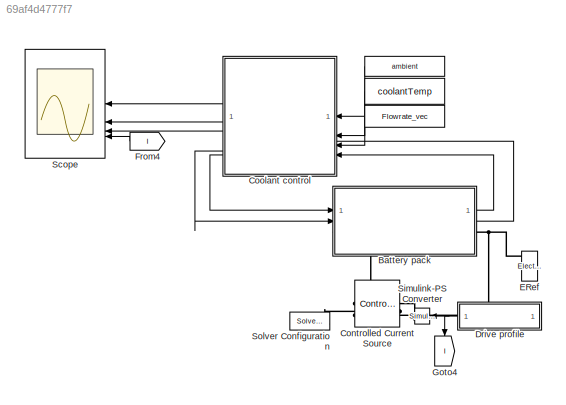
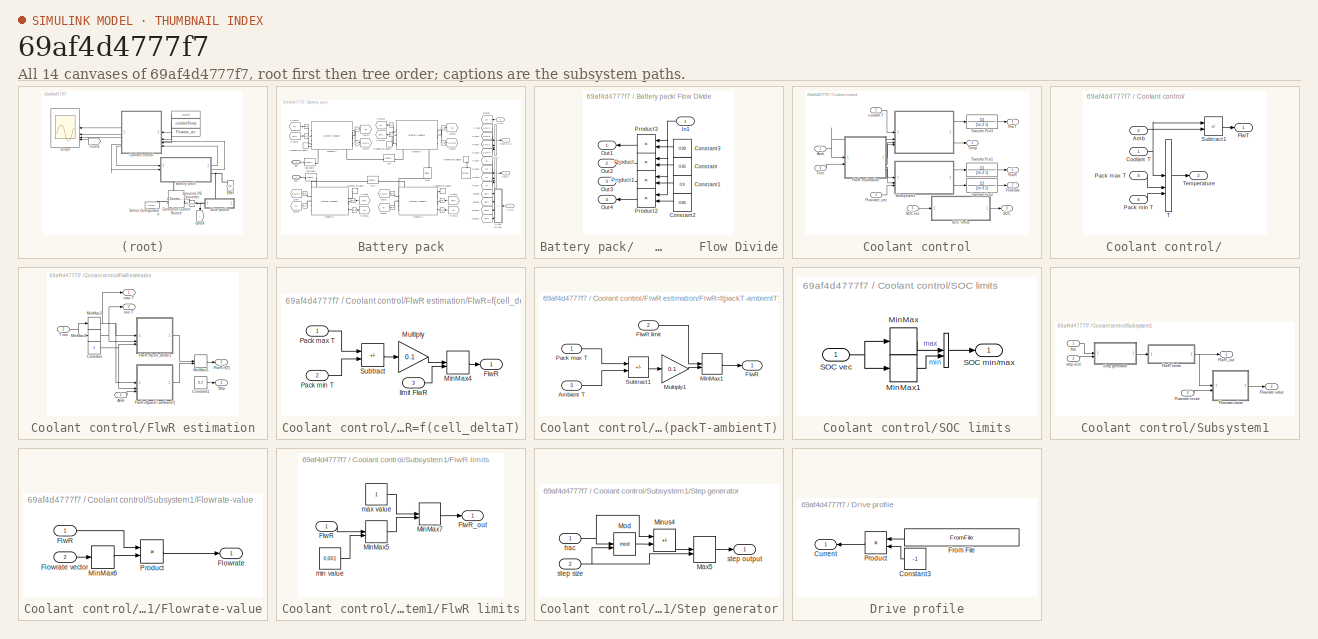
[diagram: thumbnail index - all 14 canvases of the model, root first then tree order]
MODEL slx_69af4d4777f7
KIND model
CONFIG AbsTol = 1e-3
CONFIG EnableMultiTasking = off
CONFIG FixedStep = auto
CONFIG MaxStep = 5e-2
CONFIG MinStep = auto
CONFIG PreLoadFcn = ee_lithium_pack_cooling_ini
CONFIG RelTol = 1e-3
CONFIG SampleTimeConstraint = Unconstrained
CONFIG SolverName = ode23t
CONFIG StartTime = 0.0
CONFIG StopTime = 400
BLOCK [Constant]  
  Value = coolantTemp
BLOCK [Constant]     
  Value = Flowrate_vec
BLOCK [Constant]        
  Value = ambient
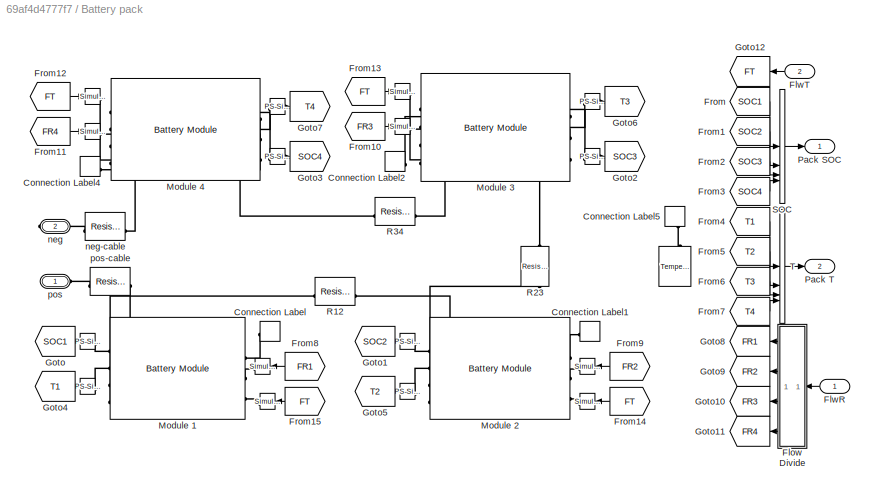
BLOCK [SubSystem] Battery pack
BLOCK [Reference] Battery pack/   REF=nesl_utility/PS-Simulink
Converter
  SourceBlock = nesl_utility/PS-Simulink\nConverter
  SourceType = PS-Simulink\nConverter
BLOCK [Reference] Battery pack/    REF=nesl_utility/PS-Simulink
Converter
  SourceBlock = nesl_utility/PS-Simulink\nConverter
  SourceType = PS-Simulink\nConverter
BLOCK [Reference] Battery pack/     REF=nesl_utility/PS-Simulink
Converter
  SourceBlock = nesl_utility/PS-Simulink\nConverter
  SourceType = PS-Simulink\nConverter
BLOCK [Reference] Battery pack/      REF=nesl_utility/Simulink-PS
Converter
  SourceBlock = nesl_utility/Simulink-PS\nConverter
  SourceType = Simulink-PS\nConverter
BLOCK [Reference] Battery pack/       REF=fl_lib/Thermal/Thermal Sources/Temperature Source
  NameLocation = left
  SourceBlock = fl_lib/Thermal/Thermal Sources/Temperature Source
  SourceType = Temperature Source
BLOCK [Reference] Battery pack/        REF=nesl_utility/PS-Simulink
Converter
  SourceBlock = nesl_utility/PS-Simulink\nConverter
  SourceType = PS-Simulink\nConverter
BLOCK [Reference] Battery pack/         REF=nesl_utility/Simulink-PS
Converter
  SourceBlock = nesl_utility/Simulink-PS\nConverter
  SourceType = Simulink-PS\nConverter
BLOCK [Reference] Battery pack/           REF=nesl_utility/PS-Simulink
Converter
  NameLocation = top
  SourceBlock = nesl_utility/PS-Simulink\nConverter
  SourceType = PS-Simulink\nConverter
BLOCK [Reference] Battery pack/            REF=nesl_utility/PS-Simulink
Converter
  NameLocation = top
  SourceBlock = nesl_utility/PS-Simulink\nConverter
  SourceType = PS-Simulink\nConverter
BLOCK [Reference] Battery pack/             REF=nesl_utility/Simulink-PS
Converter
  NameLocation = top
  SourceBlock = nesl_utility/Simulink-PS\nConverter
  SourceType = Simulink-PS\nConverter
BLOCK [Reference] Battery pack/              REF=nesl_utility/PS-Simulink
Converter
  NameLocation = top
  SourceBlock = nesl_utility/PS-Simulink\nConverter
  SourceType = PS-Simulink\nConverter
BLOCK [Reference] Battery pack/                REF=nesl_utility/Simulink-PS
Converter
  NameLocation = top
  SourceBlock = nesl_utility/Simulink-PS\nConverter
  SourceType = Simulink-PS\nConverter
BLOCK [Reference] Battery pack/                 REF=nesl_utility/Simulink-PS
Converter
  NameLocation = top
  SourceBlock = nesl_utility/Simulink-PS\nConverter
  SourceType = Simulink-PS\nConverter
BLOCK [Reference] Battery pack/                        REF=nesl_utility/Simulink-PS
Converter
  NameLocation = top
  SourceBlock = nesl_utility/Simulink-PS\nConverter
  SourceType = Simulink-PS\nConverter
BLOCK [Reference] Battery pack/                                        REF=nesl_utility/PS-Simulink
Converter
  NameLocation = top
  SourceBlock = nesl_utility/PS-Simulink\nConverter
  SourceType = PS-Simulink\nConverter
BLOCK [Reference] Battery pack/                                             REF=nesl_utility/Simulink-PS
Converter
  SourceBlock = nesl_utility/Simulink-PS\nConverter
  SourceType = Simulink-PS\nConverter
BLOCK [Reference] Battery pack/                                                    REF=nesl_utility/Simulink-PS
Converter
  NameLocation = right
  SourceBlock = nesl_utility/Simulink-PS\nConverter
  SourceType = Simulink-PS\nConverter
BLOCK [SubSystem] Battery pack/                        Flow Divide
  NameLocation = top
BLOCK [Constant] Battery pack/                        Flow Divide/Constant
  Value = 0.95
BLOCK [Constant] Battery pack/                        Flow Divide/Constant1
  Value = 0.9
BLOCK [Constant] Battery pack/                        Flow Divide/Constant2
  Value = 0.85
BLOCK [Constant] Battery pack/                        Flow Divide/Constant3
  Value = 0.99
BLOCK [Inport] Battery pack/                        Flow Divide/In1
BLOCK [Outport] Battery pack/                        Flow Divide/Out1
BLOCK [Outport] Battery pack/                        Flow Divide/Out2
  Port = 2
BLOCK [Outport] Battery pack/                        Flow Divide/Out3
  Port = 3
BLOCK [Outport] Battery pack/                        Flow Divide/Out4
  Port = 4
BLOCK [Product] Battery pack/                        Flow Divide/Product
BLOCK [Product] Battery pack/                        Flow Divide/Product1
BLOCK [Product] Battery pack/                        Flow Divide/Product2
BLOCK [Product] Battery pack/                        Flow Divide/Product3
BLOCK [ConnectionLabel] Battery pack/Connection Label
  Label = Amb
BLOCK [ConnectionLabel] Battery pack/Connection Label1
  Label = Amb
BLOCK [ConnectionLabel] Battery pack/Connection Label2
  Label = Amb
  NameLocation = top
BLOCK [ConnectionLabel] Battery pack/Connection Label4
  Label = Amb
  NameLocation = top
BLOCK [ConnectionLabel] Battery pack/Connection Label5
  Label = Amb
  NameLocation = left
BLOCK [Inport] Battery pack/FlwR
BLOCK [Inport] Battery pack/FlwT
  Port = 2
BLOCK [From] Battery pack/From
  GotoTag = SOC1
BLOCK [From] Battery pack/From1
  GotoTag = SOC2
BLOCK [From] Battery pack/From10
  GotoTag = FR3
  NameLocation = top
BLOCK [From] Battery pack/From11
  GotoTag = FR4
  NameLocation = top
BLOCK [From] Battery pack/From12
  GotoTag = FT
  NameLocation = top
BLOCK [From] Battery pack/From13
  GotoTag = FT
  NameLocation = top
BLOCK [From] Battery pack/From14
  GotoTag = FT
BLOCK [From] Battery pack/From15
  GotoTag = FT
BLOCK [From] Battery pack/From2
  GotoTag = SOC3
BLOCK [From] Battery pack/From3
  GotoTag = SOC4
BLOCK [From] Battery pack/From4
  GotoTag = T1
BLOCK [From] Battery pack/From5
  GotoTag = T2
BLOCK [From] Battery pack/From6
  GotoTag = T3
BLOCK [From] Battery pack/From7
  GotoTag = T4
BLOCK [From] Battery pack/From8
  GotoTag = FR1
BLOCK [From] Battery pack/From9
  GotoTag = FR2
BLOCK [Goto] Battery pack/Goto
  GotoTag = SOC1
BLOCK [Goto] Battery pack/Goto1
  GotoTag = SOC2
BLOCK [Goto] Battery pack/Goto10
  GotoTag = FR3
BLOCK [Goto] Battery pack/Goto11
  GotoTag = FR4
BLOCK [Goto] Battery pack/Goto12
  GotoTag = FT
BLOCK [Goto] Battery pack/Goto2
  GotoTag = SOC3
  NameLocation = top
BLOCK [Goto] Battery pack/Goto3
  GotoTag = SOC4
  NameLocation = top
BLOCK [Goto] Battery pack/Goto4
  GotoTag = T1
BLOCK [Goto] Battery pack/Goto5
  GotoTag = T2
BLOCK [Goto] Battery pack/Goto6
  GotoTag = T3
  NameLocation = top
BLOCK [Goto] Battery pack/Goto7
  GotoTag = T4
  NameLocation = top
BLOCK [Goto] Battery pack/Goto8
  GotoTag = FR1
BLOCK [Goto] Battery pack/Goto9
  GotoTag = FR2
BLOCK [Reference] Battery pack/Module 1  REF=ee_battery_module_lib/Battery Module
  SourceBlock = ee_battery_module_lib/Battery Module
  SourceType = Battery Module
BLOCK [Reference] Battery pack/Module 2  REF=ee_battery_module_lib/Battery Module
  SourceBlock = ee_battery_module_lib/Battery Module
  SourceType = Battery Module
BLOCK [Reference] Battery pack/Module 3  REF=ee_battery_module_lib/Battery Module
  NameLocation = top
  SourceBlock = ee_battery_module_lib/Battery Module
  SourceType = Battery Module
BLOCK [Reference] Battery pack/Module 4  REF=ee_battery_module_lib/Battery Module
  NameLocation = top
  SourceBlock = ee_battery_module_lib/Battery Module
  SourceType = Battery Module
BLOCK [Outport] Battery pack/Pack SOC
BLOCK [Outport] Battery pack/Pack T
  Port = 2
BLOCK [Reference] Battery pack/R12  REF=fl_lib/Electrical/Electrical Elements/Resistor
  NameLocation = top
  SourceBlock = fl_lib/Electrical/Electrical Elements/Resistor
  SourceType = Resistor
BLOCK [Reference] Battery pack/R23  REF=fl_lib/Electrical/Electrical Elements/Resistor
  NameLocation = left
  SourceBlock = fl_lib/Electrical/Electrical Elements/Resistor
  SourceType = Resistor
BLOCK [Reference] Battery pack/R34  REF=fl_lib/Electrical/Electrical Elements/Resistor
  SourceBlock = fl_lib/Electrical/Electrical Elements/Resistor
  SourceType = Resistor
BLOCK [Concatenate] Battery pack/SOC
  NumInputs = 4
BLOCK [Concatenate] Battery pack/T
  NumInputs = 4
BLOCK [PMIOPort] Battery pack/neg
  Port = 2
  Side = Right
BLOCK [Reference] Battery pack/neg-cable  REF=fl_lib/Electrical/Electrical Elements/Resistor
  NameLocation = top
  SourceBlock = fl_lib/Electrical/Electrical Elements/Resistor
  SourceType = Resistor
BLOCK [PMIOPort] Battery pack/pos
  NameLocation = top
  Side = Left
BLOCK [Reference] Battery pack/pos-cable  REF=fl_lib/Electrical/Electrical Elements/Resistor
  SourceBlock = fl_lib/Electrical/Electrical Elements/Resistor
  SourceType = Resistor
BLOCK [Reference] Controlled Current Source  REF=fl_lib/Electrical/Electrical Sources/Controlled Current
Source
  NameLocation = top
  SourceBlock = fl_lib/Electrical/Electrical Sources/Controlled Current\nSource
  SourceType = Controlled Current\nSource
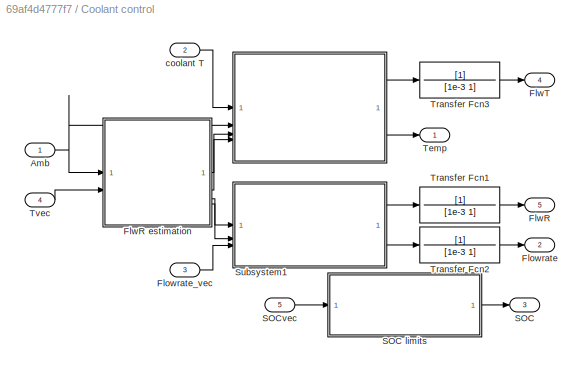
BLOCK [SubSystem] Coolant control
BLOCK [SubSystem] Coolant control/   
  NameLocation = top
BLOCK [Inport] Coolant control/   /Amb
  Port = 2
BLOCK [Inport] Coolant control/   /Coolant T
BLOCK [Outport] Coolant control/   /FlwT
BLOCK [Inport] Coolant control/   /Pack max T
  Port = 3
BLOCK [Inport] Coolant control/   /Pack min T
  Port = 4
BLOCK [Sum] Coolant control/   /Subtract1
  IconShape = rectangular
  Inputs = +-
BLOCK [Concatenate] Coolant control/   /T
  NumInputs = 3
BLOCK [Outport] Coolant control/   /Temperature
  Port = 2
BLOCK [Inport] Coolant control/Amb
BLOCK [Outport] Coolant control/Flowrate
  Port = 2
BLOCK [Inport] Coolant control/Flowrate_vec
  Port = 3
BLOCK [Outport] Coolant control/FlwR
  Port = 5
BLOCK [SubSystem] Coolant control/FlwR estimation
BLOCK [Inport] Coolant control/FlwR estimation/Amb
BLOCK [Constant] Coolant control/FlwR estimation/Constant
BLOCK [Constant] Coolant control/FlwR estimation/Constant1
  Value = 0.2
BLOCK [Outport] Coolant control/FlwR estimation/FlwR=f(T)
  Port = 3
BLOCK [SubSystem] Coolant control/FlwR estimation/FlwR=f(cell_deltaT)
BLOCK [Outport] Coolant control/FlwR estimation/FlwR=f(cell_deltaT)/FlwR
BLOCK [MinMax] Coolant control/FlwR estimation/FlwR=f(cell_deltaT)/MinMax4
  Inputs = 2
  ZeroCross = off
BLOCK [Gain] Coolant control/FlwR estimation/FlwR=f(cell_deltaT)/Multiply
  Gain = 0.1
BLOCK [Inport] Coolant control/FlwR estimation/FlwR=f(cell_deltaT)/Pack max T
BLOCK [Inport] Coolant control/FlwR estimation/FlwR=f(cell_deltaT)/Pack min T
  Port = 2
BLOCK [Sum] Coolant control/FlwR estimation/FlwR=f(cell_deltaT)/Subtract
  IconShape = rectangular
  Inputs = +-
BLOCK [Inport] Coolant control/FlwR estimation/FlwR=f(cell_deltaT)/limit FlwR
  Port = 3
BLOCK [SubSystem] Coolant control/FlwR estimation/FlwR=f(packT-ambientT)
BLOCK [Inport] Coolant control/FlwR estimation/FlwR=f(packT-ambientT)/Ambient T
  Port = 3
BLOCK [Outport] Coolant control/FlwR estimation/FlwR=f(packT-ambientT)/FlwR
BLOCK [Inport] Coolant control/FlwR estimation/FlwR=f(packT-ambientT)/FlwR limit
  Port = 2
BLOCK [MinMax] Coolant control/FlwR estimation/FlwR=f(packT-ambientT)/MinMax1
  Inputs = 2
  ZeroCross = off
BLOCK [Gain] Coolant control/FlwR estimation/FlwR=f(packT-ambientT)/Multiply1
  Gain = 0.1
BLOCK [Inport] Coolant control/FlwR estimation/FlwR=f(packT-ambientT)/Pack max T
BLOCK [Sum] Coolant control/FlwR estimation/FlwR=f(packT-ambientT)/Subtract1
  IconShape = rectangular
  Inputs = +-
BLOCK [MinMax] Coolant control/FlwR estimation/MinMax2
  Function = max
  ZeroCross = off
BLOCK [MinMax] Coolant control/FlwR estimation/MinMax3
  ZeroCross = off
BLOCK [MinMax] Coolant control/FlwR estimation/MinMax5
  Function = max
  Inputs = 2
  ZeroCross = off
BLOCK [Outport] Coolant control/FlwR estimation/Step
  Port = 4
BLOCK [Inport] Coolant control/FlwR estimation/T vec
  Port = 2
BLOCK [Outport] Coolant control/FlwR estimation/max T
BLOCK [Outport] Coolant control/FlwR estimation/min T
  Port = 2
BLOCK [Outport] Coolant control/FlwT
  Port = 4
BLOCK [Outport] Coolant control/SOC
  Port = 3
BLOCK [SubSystem] Coolant control/SOC limits
BLOCK [Concatenate] Coolant control/SOC limits/ 
BLOCK [MinMax] Coolant control/SOC limits/MinMax
  Function = max
  ZeroCross = off
BLOCK [MinMax] Coolant control/SOC limits/MinMax1
  ZeroCross = off
BLOCK [Outport] Coolant control/SOC limits/SOC min//max
BLOCK [Inport] Coolant control/SOC limits/SOC vec
BLOCK [Inport] Coolant control/SOCvec
  Port = 5
BLOCK [SubSystem] Coolant control/Subsystem1
BLOCK [Outport] Coolant control/Subsystem1/Flowrate value
  Port = 2
BLOCK [Inport] Coolant control/Subsystem1/Flowrate vector
  Port = 3
BLOCK [SubSystem] Coolant control/Subsystem1/Flowrate-value
BLOCK [Outport] Coolant control/Subsystem1/Flowrate-value/Flowrate
BLOCK [Inport] Coolant control/Subsystem1/Flowrate-value/Flowrate vector
  Port = 2
BLOCK [Inport] Coolant control/Subsystem1/Flowrate-value/FlwR
BLOCK [MinMax] Coolant control/Subsystem1/Flowrate-value/MinMax6
  Function = max
  ZeroCross = off
BLOCK [Product] Coolant control/Subsystem1/Flowrate-value/Product
BLOCK [SubSystem] Coolant control/Subsystem1/FlwR limits
BLOCK [Inport] Coolant control/Subsystem1/FlwR limits/FlwR
BLOCK [Outport] Coolant control/Subsystem1/FlwR limits/FlwR_out
BLOCK [MinMax] Coolant control/Subsystem1/FlwR limits/MinMax5
  Function = max
  Inputs = 2
  ZeroCross = off
BLOCK [MinMax] Coolant control/Subsystem1/FlwR limits/MinMax7
  Inputs = 2
  ZeroCross = off
BLOCK [Constant] Coolant control/Subsystem1/FlwR limits/max value
BLOCK [Constant] Coolant control/Subsystem1/FlwR limits/min value
  Value = 0.001
BLOCK [Outport] Coolant control/Subsystem1/FlwR_out
BLOCK [SubSystem] Coolant control/Subsystem1/Step generator
BLOCK [MinMax] Coolant control/Subsystem1/Step generator/Max5
  Function = max
  Inputs = 2
  ZeroCross = off
BLOCK [Sum] Coolant control/Subsystem1/Step generator/Minus4
  IconShape = rectangular
  Inputs = +-
BLOCK [Math] Coolant control/Subsystem1/Step generator/Mod
  Operator = mod
BLOCK [Inport] Coolant control/Subsystem1/Step generator/frac
BLOCK [Outport] Coolant control/Subsystem1/Step generator/step output
BLOCK [Inport] Coolant control/Subsystem1/Step generator/step size
  Port = 2
BLOCK [Inport] Coolant control/Subsystem1/frac
BLOCK [Inport] Coolant control/Subsystem1/step size
  Port = 2
BLOCK [Outport] Coolant control/Temp
BLOCK [TransferFcn] Coolant control/Transfer Fcn1
  Denominator = [1e-3 1]
BLOCK [TransferFcn] Coolant control/Transfer Fcn2
  Denominator = [1e-3 1]
BLOCK [TransferFcn] Coolant control/Transfer Fcn3
  Denominator = [1e-3 1]
BLOCK [Inport] Coolant control/Tvec
  Port = 4
BLOCK [Inport] Coolant control/coolant T
  Port = 2
BLOCK [SubSystem] Drive profile
BLOCK [Constant] Drive profile/Constant3
  Value = -1
BLOCK [Outport] Drive profile/Current
BLOCK [FromFile] Drive profile/From File
  FileName = ee_lithium_pack_cooling_Ivst.mat
  SampleTime = 0
BLOCK [Product] Drive profile/Product
BLOCK [Reference] ERef   REF=fl_lib/Electrical/Electrical Elements/Electrical Reference
  NameLocation = left
  SourceBlock = fl_lib/Electrical/Electrical Elements/Electrical Reference
  SourceType = Electrical Reference
BLOCK [From] From4
  GotoTag = I
BLOCK [Goto] Goto4
  GotoTag = I
  NameLocation = right
BLOCK [Scope] Scope
  Floating = off
  NumInputPorts = 4
  ScopeSpecificationString = Simulink.scopes.TimeScopeBlockCfg('CurrentConfiguration', extmgr.ConfigurationSet(extmgr.Configuration('Core','General UI',true),extmgr.Configuration('Core','Source UI',true),extmgr.Configuration('Sources','WiredSimulink',true),extmgr.Configuration('Visuals','Time Domain',true,'SerializedDisplays',{struct('MinYLimReal','296.18572','MaxYLimReal','315.82848','YLabelReal','Temperature','MinYLimMag','...<+3757ch>
BLOCK [Reference] Simulink-PS Converter  REF=nesl_utility/Simulink-PS
Converter
  SourceBlock = nesl_utility/Simulink-PS\nConverter
  SourceType = Simulink-PS\nConverter
BLOCK [Reference] Solver Configuration  REF=nesl_utility/Solver
Configuration
  NameLocation = top
  SourceBlock = nesl_utility/Solver\nConfiguration
  SourceType = Solver\nConfiguration
LINE        :1 -> Coolant control:1
LINE     :1 -> Coolant control:3
LINE  :1 -> Coolant control:2
LINE Battery pack/                                      :1 -> Battery pack/Goto7:1
LINE Battery pack/                        Flow Divide/Constant1:1 -> Battery pack/                        Flow Divide/Product1:2
LINE Battery pack/                        Flow Divide/Constant2:1 -> Battery pack/                        Flow Divide/Product2:2
LINE Battery pack/                        Flow Divide/Constant3:1 -> Battery pack/                        Flow Divide/Product3:2
LINE Battery pack/                        Flow Divide/Constant:1 -> Battery pack/                        Flow Divide/Product:2
NET Battery pack/                        Flow Divide/In1:1 -> Battery pack/                        Flow Divide/Product1:1, Battery pack/                        Flow Divide/Product2:1, Battery pack/                        Flow Divide/Product3:1, Battery pack/                        Flow Divide/Product:1
LINE Battery pack/                        Flow Divide/Product1:1 -> Battery pack/                        Flow Divide/Out3:1
LINE Battery pack/                        Flow Divide/Product2:1 -> Battery pack/                        Flow Divide/Out4:1
LINE Battery pack/                        Flow Divide/Product3:1 -> Battery pack/                        Flow Divide/Out1:1
LINE Battery pack/                        Flow Divide/Product:1 -> Battery pack/                        Flow Divide/Out2:1
LINE Battery pack/                        Flow Divide:1 -> Battery pack/Goto8:1
LINE Battery pack/                        Flow Divide:2 -> Battery pack/Goto9:1
LINE Battery pack/                        Flow Divide:3 -> Battery pack/Goto10:1
LINE Battery pack/                        Flow Divide:4 -> Battery pack/Goto11:1
LINE Battery pack/            :1 -> Battery pack/Goto3:1
LINE Battery pack/          :1 -> Battery pack/Goto2:1
LINE Battery pack/         :1 -> Battery pack/Goto6:1
LINE Battery pack/      :1 -> Battery pack/Goto1:1
LINE Battery pack/   :1 -> Battery pack/Goto5:1
LINE Battery pack/  :1 -> Battery pack/Goto:1
LINE Battery pack/ :1 -> Battery pack/Goto4:1
LINE Battery pack/FlwR:1 -> Battery pack/                        Flow Divide:1
LINE Battery pack/FlwT:1 -> Battery pack/Goto12:1
LINE Battery pack/From10:1 -> Battery pack/                      :1
LINE Battery pack/From11:1 -> Battery pack/           :1
LINE Battery pack/From12:1 -> Battery pack/               :1
LINE Battery pack/From13:1 -> Battery pack/              :1
LINE Battery pack/From14:1 -> Battery pack/                                                  :1
LINE Battery pack/From15:1 -> Battery pack/                                           :1
LINE Battery pack/From1:1 -> Battery pack/SOC:2
LINE Battery pack/From2:1 -> Battery pack/SOC:3
LINE Battery pack/From3:1 -> Battery pack/SOC:4
LINE Battery pack/From4:1 -> Battery pack/T:1
LINE Battery pack/From5:1 -> Battery pack/T:2
LINE Battery pack/From6:1 -> Battery pack/T:3
LINE Battery pack/From7:1 -> Battery pack/T:4
LINE Battery pack/From8:1 -> Battery pack/    :1
LINE Battery pack/From9:1 -> Battery pack/       :1
LINE Battery pack/From:1 -> Battery pack/SOC:1
LINE Battery pack/SOC:1 -> Battery pack/Pack SOC:1
LINE Battery pack/T:1 -> Battery pack/Pack T:1
LINE Battery pack:1 -> Coolant control:5
LINE Battery pack:2 -> Coolant control:4
LINE Coolant control/   /Amb:1 -> Coolant control/   /Subtract1:2
NET Coolant control/   /Coolant T:1 -> Coolant control/   /Subtract1:1, Coolant control/   /T:1
LINE Coolant control/   /Pack max T:1 -> Coolant control/   /T:2
LINE Coolant control/   /Pack min T:1 -> Coolant control/   /T:3
LINE Coolant control/   /Subtract1:1 -> Coolant control/   /FlwT:1
LINE Coolant control/   /T:1 -> Coolant control/   /Temperature:1
LINE Coolant control/   :1 -> Coolant control/Transfer Fcn3:1
LINE Coolant control/   :2 -> Coolant control/Temp:1
NET Coolant control/Amb:1 -> Coolant control/   :2, Coolant control/FlwR estimation:1
LINE Coolant control/Flowrate_vec:1 -> Coolant control/Subsystem1:3
LINE Coolant control/FlwR estimation/Amb:1 -> Coolant control/FlwR estimation/FlwR=f(packT-ambientT):3
LINE Coolant control/FlwR estimation/Constant1:1 -> Coolant control/FlwR estimation/Step:1
NET Coolant control/FlwR estimation/Constant:1 -> Coolant control/FlwR estimation/FlwR=f(cell_deltaT):3, Coolant control/FlwR estimation/FlwR=f(packT-ambientT):2
LINE Coolant control/FlwR estimation/FlwR=f(cell_deltaT)/MinMax4:1 -> Coolant control/FlwR estimation/FlwR=f(cell_deltaT)/FlwR:1
LINE Coolant control/FlwR estimation/FlwR=f(cell_deltaT)/Multiply:1 -> Coolant control/FlwR estimation/FlwR=f(cell_deltaT)/MinMax4:1
LINE Coolant control/FlwR estimation/FlwR=f(cell_deltaT)/Pack max T:1 -> Coolant control/FlwR estimation/FlwR=f(cell_deltaT)/Subtract:1
LINE Coolant control/FlwR estimation/FlwR=f(cell_deltaT)/Pack min T:1 -> Coolant control/FlwR estimation/FlwR=f(cell_deltaT)/Subtract:2
LINE Coolant control/FlwR estimation/FlwR=f(cell_deltaT)/Subtract:1 -> Coolant control/FlwR estimation/FlwR=f(cell_deltaT)/Multiply:1
LINE Coolant control/FlwR estimation/FlwR=f(cell_deltaT)/limit FlwR:1 -> Coolant control/FlwR estimation/FlwR=f(cell_deltaT)/MinMax4:2
LINE Coolant control/FlwR estimation/FlwR=f(cell_deltaT):1 -> Coolant control/FlwR estimation/MinMax5:1
LINE Coolant control/FlwR estimation/FlwR=f(packT-ambientT)/Ambient T:1 -> Coolant control/FlwR estimation/FlwR=f(packT-ambientT)/Subtract1:2
LINE Coolant control/FlwR estimation/FlwR=f(packT-ambientT)/FlwR limit:1 -> Coolant control/FlwR estimation/FlwR=f(packT-ambientT)/MinMax1:1
LINE Coolant control/FlwR estimation/FlwR=f(packT-ambientT)/MinMax1:1 -> Coolant control/FlwR estimation/FlwR=f(packT-ambientT)/FlwR:1
LINE Coolant control/FlwR estimation/FlwR=f(packT-ambientT)/Multiply1:1 -> Coolant control/FlwR estimation/FlwR=f(packT-ambientT)/MinMax1:2
LINE Coolant control/FlwR estimation/FlwR=f(packT-ambientT)/Pack max T:1 -> Coolant control/FlwR estimation/FlwR=f(packT-ambientT)/Subtract1:1
LINE Coolant control/FlwR estimation/FlwR=f(packT-ambientT)/Subtract1:1 -> Coolant control/FlwR estimation/FlwR=f(packT-ambientT)/Multiply1:1
LINE Coolant control/FlwR estimation/FlwR=f(packT-ambientT):1 -> Coolant control/FlwR estimation/MinMax5:2
NET Coolant control/FlwR estimation/MinMax2:1 -> Coolant control/FlwR estimation/FlwR=f(cell_deltaT):1, Coolant control/FlwR estimation/FlwR=f(packT-ambientT):1, Coolant control/FlwR estimation/max T:1
NET Coolant control/FlwR estimation/MinMax3:1 -> Coolant control/FlwR estimation/FlwR=f(cell_deltaT):2, Coolant control/FlwR estimation/min T:1
LINE Coolant control/FlwR estimation/MinMax5:1 -> Coolant control/FlwR estimation/FlwR=f(T):1
NET Coolant control/FlwR estimation/T vec:1 -> Coolant control/FlwR estimation/MinMax2:1, Coolant control/FlwR estimation/MinMax3:1
LINE Coolant control/FlwR estimation:1 -> Coolant control/   :3
LINE Coolant control/FlwR estimation:2 -> Coolant control/   :4
LINE Coolant control/FlwR estimation:3 -> Coolant control/Subsystem1:1
LINE Coolant control/FlwR estimation:4 -> Coolant control/Subsystem1:2
LINE Coolant control/SOC limits/ :1 -> Coolant control/SOC limits/SOC min//max:1
LINE Coolant control/SOC limits/MinMax1:1 -> Coolant control/SOC limits/ :2
LINE Coolant control/SOC limits/MinMax:1 -> Coolant control/SOC limits/ :1
NET Coolant control/SOC limits/SOC vec:1 -> Coolant control/SOC limits/MinMax1:1, Coolant control/SOC limits/MinMax:1
LINE Coolant control/SOC limits:1 -> Coolant control/SOC:1
LINE Coolant control/SOCvec:1 -> Coolant control/SOC limits:1
LINE Coolant control/Subsystem1/Flowrate vector:1 -> Coolant control/Subsystem1/Flowrate-value:2
LINE Coolant control/Subsystem1/Flowrate-value/Flowrate vector:1 -> Coolant control/Subsystem1/Flowrate-value/MinMax6:1
LINE Coolant control/Subsystem1/Flowrate-value/FlwR:1 -> Coolant control/Subsystem1/Flowrate-value/Product:1
LINE Coolant control/Subsystem1/Flowrate-value/MinMax6:1 -> Coolant control/Subsystem1/Flowrate-value/Product:2
LINE Coolant control/Subsystem1/Flowrate-value/Product:1 -> Coolant control/Subsystem1/Flowrate-value/Flowrate:1
LINE Coolant control/Subsystem1/Flowrate-value:1 -> Coolant control/Subsystem1/Flowrate value:1
LINE Coolant control/Subsystem1/FlwR limits/FlwR:1 -> Coolant control/Subsystem1/FlwR limits/MinMax5:1
LINE Coolant control/Subsystem1/FlwR limits/MinMax5:1 -> Coolant control/Subsystem1/FlwR limits/MinMax7:2
LINE Coolant control/Subsystem1/FlwR limits/MinMax7:1 -> Coolant control/Subsystem1/FlwR limits/FlwR_out:1
LINE Coolant control/Subsystem1/FlwR limits/max value:1 -> Coolant control/Subsystem1/FlwR limits/MinMax7:1
LINE Coolant control/Subsystem1/FlwR limits/min value:1 -> Coolant control/Subsystem1/FlwR limits/MinMax5:2
NET Coolant control/Subsystem1/FlwR limits:1 -> Coolant control/Subsystem1/Flowrate-value:1, Coolant control/Subsystem1/FlwR_out:1
LINE Coolant control/Subsystem1/Step generator/Max5:1 -> Coolant control/Subsystem1/Step generator/step output:1
LINE Coolant control/Subsystem1/Step generator/Minus4:1 -> Coolant control/Subsystem1/Step generator/Max5:1
LINE Coolant control/Subsystem1/Step generator/Mod:1 -> Coolant control/Subsystem1/Step generator/Minus4:2
NET Coolant control/Subsystem1/Step generator/frac:1 -> Coolant control/Subsystem1/Step generator/Minus4:1, Coolant control/Subsystem1/Step generator/Mod:1
NET Coolant control/Subsystem1/Step generator/step size:1 -> Coolant control/Subsystem1/Step generator/Max5:2, Coolant control/Subsystem1/Step generator/Mod:2
LINE Coolant control/Subsystem1/Step generator:1 -> Coolant control/Subsystem1/FlwR limits:1
LINE Coolant control/Subsystem1/frac:1 -> Coolant control/Subsystem1/Step generator:1
LINE Coolant control/Subsystem1/step size:1 -> Coolant control/Subsystem1/Step generator:2
LINE Coolant control/Subsystem1:1 -> Coolant control/Transfer Fcn1:1
LINE Coolant control/Subsystem1:2 -> Coolant control/Transfer Fcn2:1
LINE Coolant control/Transfer Fcn1:1 -> Coolant control/FlwR:1
LINE Coolant control/Transfer Fcn2:1 -> Coolant control/Flowrate:1
LINE Coolant control/Transfer Fcn3:1 -> Coolant control/FlwT:1
LINE Coolant control/Tvec:1 -> Coolant control/FlwR estimation:2
LINE Coolant control/coolant T:1 -> Coolant control/   :1
LINE Coolant control:1 -> Scope:1
LINE Coolant control:2 -> Scope:2
LINE Coolant control:3 -> Scope:3
LINE Coolant control:4 -> Battery pack:2
LINE Coolant control:5 -> Battery pack:1
LINE Drive profile/Constant3:1 -> Drive profile/Product:2
LINE Drive profile/From File:1 -> Drive profile/Product:1
LINE Drive profile/Product:1 -> Drive profile/Current:1
NET Drive profile:1 -> Goto4:1, Simulink-PS Converter:1
LINE From4:1 -> Scope:4
PLINE Battery pack/                                                  :RConn1 -- Battery pack/Module 2:RConn3
PLINE Battery pack/                                           :RConn1 -- Battery pack/Module 1:RConn3
PLINE Battery pack/                                      :LConn1 -- Battery pack/Module 4:LConn2
PLINE Battery pack/                      :RConn1 -- Battery pack/Module 3:RConn2
PLINE Battery pack/               :RConn1 -- Battery pack/Module 4:RConn3
PLINE Battery pack/              :RConn1 -- Battery pack/Module 3:RConn3
PLINE Battery pack/            :LConn1 -- Battery pack/Module 4:LConn1
PLINE Battery pack/           :RConn1 -- Battery pack/Module 4:RConn2
PLINE Battery pack/          :LConn1 -- Battery pack/Module 3:LConn1
PLINE Battery pack/         :LConn1 -- Battery pack/Module 3:LConn2
PLINE Battery pack/       :RConn1 -- Battery pack/Module 2:RConn2
PLINE Battery pack/      :LConn1 -- Battery pack/Module 2:LConn1
PLINE Battery pack/     :LConn1 -- Battery pack/Connection Label5:LConn1
PLINE Battery pack/    :RConn1 -- Battery pack/Module 1:RConn2
PLINE Battery pack/   :LConn1 -- Battery pack/Module 2:LConn2
PLINE Battery pack/  :LConn1 -- Battery pack/Module 1:LConn1
PLINE Battery pack/ :LConn1 -- Battery pack/Module 1:LConn2
PLINE Battery pack/Connection Label1:LConn1 -- Battery pack/Module 2:RConn1
PLINE Battery pack/Connection Label2:LConn1 -- Battery pack/Module 3:RConn1
PLINE Battery pack/Connection Label4:LConn1 -- Battery pack/Module 4:RConn1
PLINE Battery pack/Connection Label:LConn1 -- Battery pack/Module 1:RConn1
PLINE Battery pack/Module 1:LConn3 -- Battery pack/pos-cable:RConn1
PLINE Battery pack/Module 1:LConn4 -- Battery pack/R12:LConn1
PLINE Battery pack/Module 2:LConn3 -- Battery pack/R12:RConn1
PLINE Battery pack/Module 2:LConn4 -- Battery pack/R23:LConn1
PLINE Battery pack/Module 3:LConn3 -- Battery pack/R23:RConn1
PLINE Battery pack/Module 3:LConn4 -- Battery pack/R34:LConn1
PLINE Battery pack/Module 4:LConn3 -- Battery pack/R34:RConn1
PLINE Battery pack/Module 4:LConn4 -- Battery pack/neg-cable:LConn1
PLINE Battery pack/neg-cable:RConn1 -- Battery pack/neg:RConn1
PLINE Battery pack/pos-cable:LConn1 -- Battery pack/pos:RConn1
PNET net1: Battery pack:LConn1 -- Controlled Current Source:LConn1 -- Solver Configuration:RConn1
PNET net2: Battery pack:RConn1 -- Controlled Current Source:RConn2 -- ERef :LConn1
PLINE Controlled Current Source:RConn1 -- Simulink-PS Converter:RConn1
note: NET lines group one-source signal fan-out (src -> all destinations, sorted); 1:1 wires keep LINE; PNET lines group multi-terminal physical nets as a canonical sorted terminal list (undirected conserving connections); 2-terminal nets keep the pairwise PLINE form
